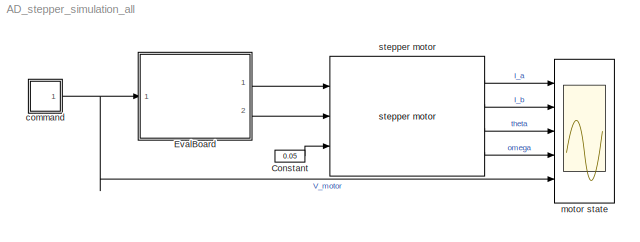
MODEL AD_stepper_simulation_all
KIND model
CONFIG PostLoadFcn = AD_stepper_parameter;\nTs = 0.01;     % sample time\nTmax = 0.5;  % maximum duration of a pulse
BLOCK [Constant] Constant
  SID = 1
  Value = 0.05
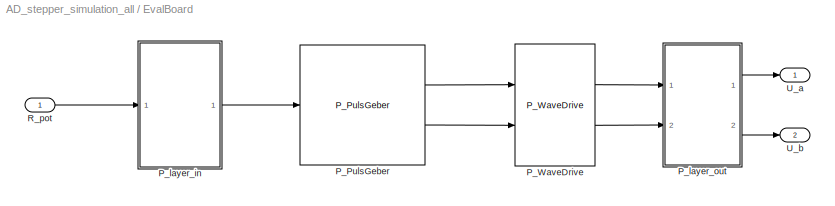
BLOCK [SubSystem] EvalBoard
  Ports = [1, 2]
  RequestExecContextInheritance = off
  SID = 2
  SystemSampleTime = Ts
  TreatAsAtomicUnit = on
BLOCK [Reference] EvalBoard/P_PulsGeber  REF=AD_Stepper_motor_lib/P_PulsGeber
  FunctionWithSeparateData = off
  Ports = [1, 2]
  RTWMemSecDataConstants = Inherit from model
  RTWMemSecDataInternal = Inherit from model
  RTWMemSecDataParameters = Inherit from model
  RTWMemSecFuncExecute = Inherit from model
  RTWMemSecFuncInitTerm = Inherit from model
  SID = 149
  ShowPortLabels = FromPortIcon
  SourceBlock = AD_Stepper_motor_lib/P_PulsGeber
  SourceType = SubSystem
  SystemSampleTime = Ts
BLOCK [Reference] EvalBoard/P_WaveDrive  REF=AD_Stepper_motor_lib/P_WaveDrive
  FunctionWithSeparateData = off
  Ports = [2, 2]
  RTWMemSecDataConstants = Inherit from model
  RTWMemSecDataInternal = Inherit from model
  RTWMemSecDataParameters = Inherit from model
  RTWMemSecFuncExecute = Inherit from model
  RTWMemSecFuncInitTerm = Inherit from model
  SID = 148
  ShowPortLabels = FromPortIcon
  SourceBlock = AD_Stepper_motor_lib/P_WaveDrive
  SourceType = SubSystem
  SystemSampleTime = Ts
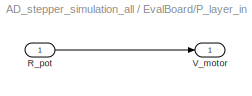
BLOCK [SubSystem] EvalBoard/P_layer_in
  Ports = [1, 1]
  RequestExecContextInheritance = off
  SID = 63
  TreatAsAtomicUnit = on
BLOCK [Inport] EvalBoard/P_layer_in/R_pot
  IconDisplay = Port number
  SID = 64
BLOCK [Outport] EvalBoard/P_layer_in/V_motor
  IconDisplay = Port number
  SID = 65
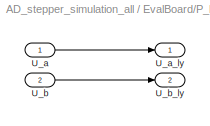
BLOCK [SubSystem] EvalBoard/P_layer_out
  Ports = [2, 2]
  RequestExecContextInheritance = off
  SID = 66
  SystemSampleTime = Ts
  TreatAsAtomicUnit = on
BLOCK [Inport] EvalBoard/P_layer_out/U_a
  IconDisplay = Port number
  SID = 67
BLOCK [Outport] EvalBoard/P_layer_out/U_a_ly
  IconDisplay = Port number
  SID = 69
BLOCK [Inport] EvalBoard/P_layer_out/U_b
  IconDisplay = Port number
  Port = 2
  SID = 68
BLOCK [Outport] EvalBoard/P_layer_out/U_b_ly
  IconDisplay = Port number
  Port = 2
  SID = 70
BLOCK [Inport] EvalBoard/R_pot
  IconDisplay = Port number
  SID = 3
BLOCK [Outport] EvalBoard/U_a
  IconDisplay = Port number
  SID = 73
BLOCK [Outport] EvalBoard/U_b
  IconDisplay = Port number
  Port = 2
  SID = 74
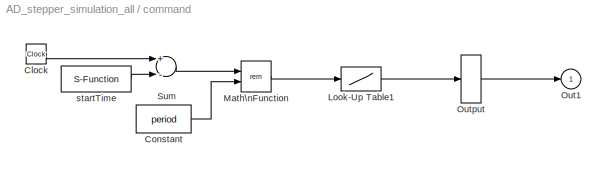
BLOCK [SubSystem] command
  Ports = [0, 1]
  RequestExecContextInheritance = off
  SID = 139
BLOCK [Clock] command/Clock
  DisableCoverage = on
  SID = 140
BLOCK [Constant] command/Constant
  DisableCoverage = on
  SID = 141
  Value = period
BLOCK [Lookup] command/Look-Up Table1
  DisableCoverage = on
  InputValues = rep_seq_t - min(rep_seq_t)
  SID = 142
  Table = rep_seq_y
BLOCK [Math] command/Math\nFunction
  DisableCoverage = on
  Operator = rem
  Ports = [2, 1]
  SID = 143
BLOCK [Outport] command/Out1
  IconDisplay = Port number
  SID = 147
BLOCK [SignalConversion] command/Output
  ConversionOutput = Contiguous copy
  OverrideOpt = off
  SID = 144
BLOCK [Sum] command/Sum
  DisableCoverage = on
  Inputs = +-
  Ports = [2, 1]
  SID = 145
BLOCK [S-Function] command/startTime
  DisableCoverage = on
  EnableBusSupport = off
  FunctionName = sfun_tstart
  Ports = [0, 1]
  SFcnIsStateOwnerBlock = off
  SFunctionDeploymentMode = off
  SID = 146
BLOCK [Scope] motor state
  Floating = off
  NumInputPorts = 5
  Ports = [5]
  SID = 77
  ScopeSpecificationString = C++SS(StrPVP('Location','[474, 189, 1218, 701]'),StrPVP('Open','off'),MxPVP('AxesTitles',54,'struct(''axes1'',''%<SignalLabel>'',''axes2'',''%<SignalLabel>'',''axes3'',''%<SignalLabel>'',''axes4'',''%<SignalLabel>'',''axes5'',''%<SignalLabel>'')'),StrPVP('TimeRange','10'),StrPVP('YMin','-5~-5~-2~-10~-1.5'),StrPVP('YMax','5~5~0~10~1.5'),StrPVP('SaveName','ScopeData3'),StrPVP('DataFormat','Structure...<+141ch>
BLOCK [Reference] stepper motor  REF=AD_Stepper_motor_lib/stepper motor
  FunctionWithSeparateData = off
  Ports = [3, 4]
  RTWMemSecDataConstants = Inherit from model
  RTWMemSecDataInternal = Inherit from model
  RTWMemSecDataParameters = Inherit from model
  RTWMemSecFuncExecute = Inherit from model
  RTWMemSecFuncInitTerm = Inherit from model
  SID = 138
  ShowPortLabels = FromPortIcon
  SourceBlock = AD_Stepper_motor_lib/stepper motor
  SourceType = SubSystem
  SystemSampleTime = -1
LINE Constant:1 -> stepper motor:3
LINE EvalBoard/P_PulsGeber:1 -> EvalBoard/P_WaveDrive:1
LINE EvalBoard/P_PulsGeber:2 -> EvalBoard/P_WaveDrive:2
LINE EvalBoard/P_WaveDrive:1 -> EvalBoard/P_layer_out:1
LINE EvalBoard/P_WaveDrive:2 -> EvalBoard/P_layer_out:2
LINE EvalBoard/P_layer_in/R_pot:1 -> EvalBoard/P_layer_in/V_motor:1
LINE EvalBoard/P_layer_in:1 -> EvalBoard/P_PulsGeber:1
LINE EvalBoard/P_layer_out/U_a:1 -> EvalBoard/P_layer_out/U_a_ly:1
LINE EvalBoard/P_layer_out/U_b:1 -> EvalBoard/P_layer_out/U_b_ly:1
LINE EvalBoard/P_layer_out:1 -> EvalBoard/U_a:1
LINE EvalBoard/P_layer_out:2 -> EvalBoard/U_b:1
LINE EvalBoard/R_pot:1 -> EvalBoard/P_layer_in:1
LINE EvalBoard:1 -> stepper motor:1
LINE EvalBoard:2 -> stepper motor:2
LINE command/Clock:1 -> command/Sum:1
LINE command/Constant:1 -> command/Math\nFunction:2
LINE command/Look-Up Table1:1 -> command/Output:1
LINE command/Math\nFunction:1 -> command/Look-Up Table1:1
LINE command/Output:1 -> command/Out1:1
LINE command/Sum:1 -> command/Math\nFunction:1
LINE command/startTime:1 -> command/Sum:2
NET command:1 -> EvalBoard:1, motor state:5
LINE stepper motor:1 -> motor state:1
LINE stepper motor:2 -> motor state:2
LINE stepper motor:3 -> motor state:3
LINE stepper motor:4 -> motor state:4
note: NET lines group one-source signal fan-out (src -> all destinations, sorted); 1:1 wires keep LINE
